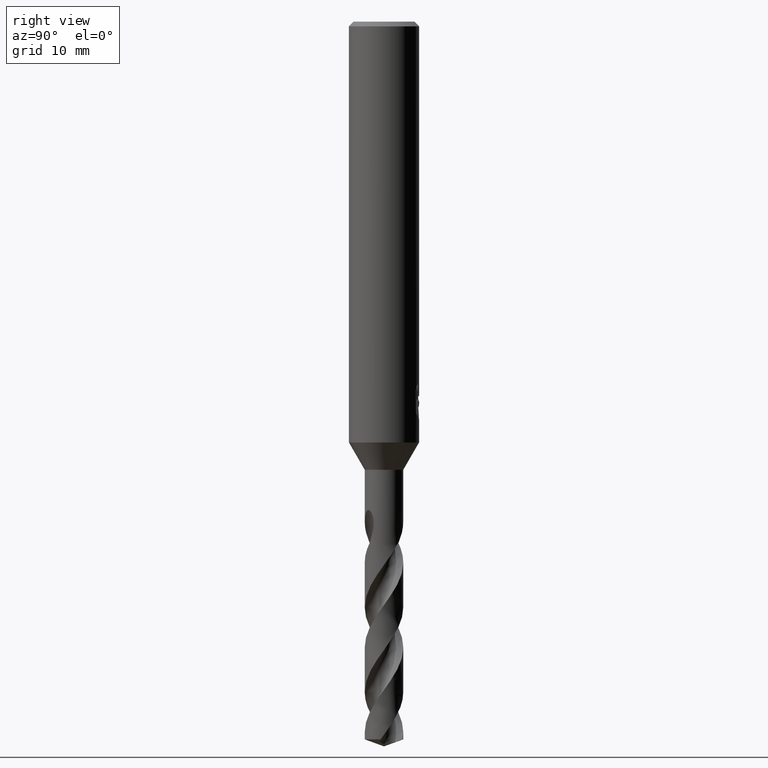
[diagram: clean part render]
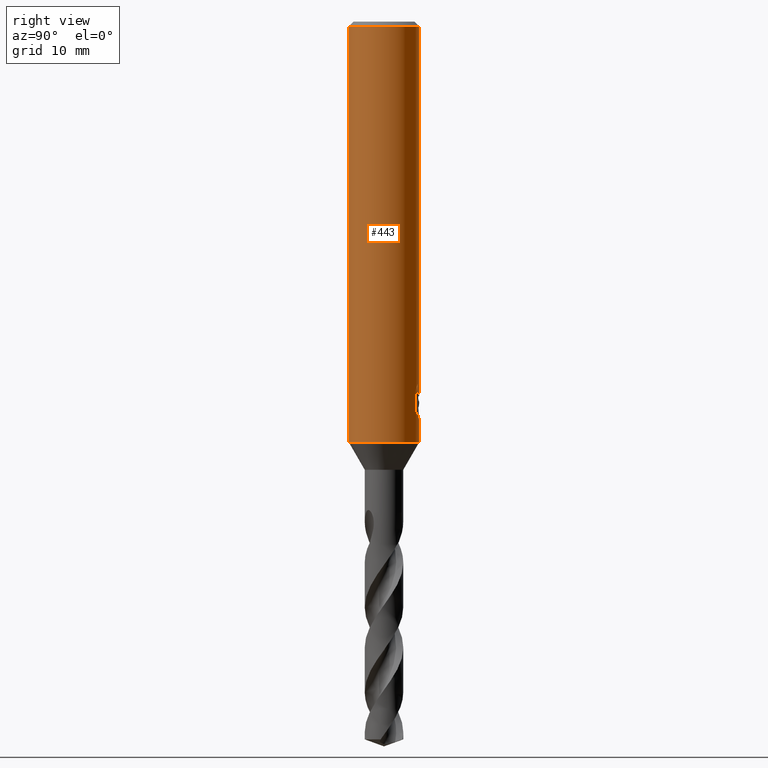
[diagram: same view with one face highlighted and labeled with its STEP entity id]
A machine part, right view. The second image highlights one B-rep face of the part: STEP entity #443.
In plain terms, the highlighted cylindrical surface (edge-blend (fillet) strip) has radius 3 mm, axis along (-0, -0, 1).
Its self-contained STEP definition (entity closure, byte-faithful):
#285=EDGE_CURVE('',#363,#711,#792,.T.);
#303=VERTEX_POINT('',#812);
#325=VERTEX_POINT('',#838);
#329=VERTEX_POINT('',#842);
#351=VERTEX_POINT('',#867);
#363=VERTEX_POINT('',#881);
#373=EDGE_CURVE('',#351,#303,#891,.T.);
#381=EDGE_CURVE('',#441,#329,#900,.T.);
#395=EDGE_CURVE('',#441,#627,#915,.T.);
#421=EDGE_CURVE('',#329,#663,#944,.T.);
#427=EDGE_CURVE('',#663,#303,#950,.T.);
#433=EDGE_CURVE('',#493,#325,#957,.T.);
#441=VERTEX_POINT('',#965);
#443=ADVANCED_FACE('',(#967),#968,.T.);
#475=EDGE_CURVE('',#325,#685,#1002,.T.);
#493=VERTEX_POINT('',#1022);
#503=EDGE_CURVE('',#351,#685,#1034,.T.);
#583=VERTEX_POINT('',#1124);
#607=EDGE_CURVE('',#583,#363,#1149,.T.);
#627=VERTEX_POINT('',#1170);
#639=EDGE_CURVE('',#711,#493,#1183,.T.);
#663=VERTEX_POINT('',#1210);
#685=VERTEX_POINT('',#1232);
#709=EDGE_CURVE('',#627,#583,#1258,.T.);
#711=VERTEX_POINT('',#1260);
#792=B_SPLINE_CURVE_WITH_KNOTS('',3,(#1344,#1345,#1346,#1347,#1348,#1349,#1350,#1351),.UNSPECIFIED.,.F.,.F.,(4,2,2,4),(8.17446522132897,8.48751487521068,8.80056452909238,9.43014514523744),.UNSPECIFIED.);
#812=CARTESIAN_POINT('',(3.67381906146713E-016,-3.0,-0.399999999999999));
#838=CARTESIAN_POINT('',(0.799431726384364,2.89152363207533,-31.000000276873));
#842=CARTESIAN_POINT('',(0.0,3.0,-36.0));
#867=CARTESIAN_POINT('',(0.0,3.0,-0.399999999999999));
#881=CARTESIAN_POINT('',(0.873560781758956,2.86999852971612,-33.7587351791531));
#891=CIRCLE('',#2178,3.0);
#900=LINE('',#2487,#2488);
#915=B_SPLINE_CURVE_WITH_KNOTS('',3,(#2612,#2613,#2614,#2615,#2616,#2617,#2618,#2619,#2620,#2621,#2622,#2623,#2624,#2625,#2626,#2627),.UNSPECIFIED.,.F.,.F.,(4,2,2,2,2,2,2,4),(5.66023402257373,6.29060333517104,6.60504483258975,6.91948633000846,7.23392782742717,7.54836932484587,7.86141901111221,8.17446869737855),.UNSPECIFIED.);
#944=CIRCLE('',#2669,3.0);
#950=LINE('',#2676,#2677);
#957=B_SPLINE_CURVE_WITH_KNOTS('',3,(#2686,#2687,#2688,#2689,#2690,#2691,#2692,#2693),.UNSPECIFIED.,.F.,.F.,(4,2,2,4),(0.629580638580865,1.25916127716173,1.57221094126725,1.88526060537277),.UNSPECIFIED.);
#965=CARTESIAN_POINT('',(-2.46407913303377E-016,3.0,-34.0310253601033));
#967=FACE_OUTER_BOUND('',#2708,.T.);
#968=CYLINDRICAL_SURFACE('',#2709,3.0);
#1002=B_SPLINE_CURVE_WITH_KNOTS('',3,(#2876,#2877,#2878,#2879,#2880,#2881,#2882,#2883,#2884,#2885,#2886,#2887,#2888,#2889,#2890,#2891,#2892,#2893,#2894,#2895,#2896,#2897,#2898,#2899,#2900,#2901,#2902),.UNSPECIFIED.,.F.,.F.,(4,2,3,2,2,2,2,2,2,2,2,2,4),(-0.54422824842136,-0.27211412421068,0.0,0.272114124210678,0.544228248421357,0.817906359646673,1.09158447087199,1.36255924571499,1.63353402055798,1.90530456554772,2.17707511053746,2.4488456555272,2.72061620051693),.UNSPECIFIED.);
#1022=CARTESIAN_POINT('',(1.33721006514658,2.68549236485057,-31.5150484364821));
#1034=LINE('',#3021,#3022);
#1124=CARTESIAN_POINT('',(0.873560781758957,2.86999852971612,-32.3198931596091));
#1149=LINE('',#4179,#4180);
#1170=CARTESIAN_POINT('',(0.29010312703583,2.98594041730307,-33.9998328990228));
#1183=LINE('',#4246,#4247);
#1210=CARTESIAN_POINT('',(3.67381906146713E-016,-3.0,-36.0));
#1232=CARTESIAN_POINT('',(-1.20768269592175E-015,3.0,-32.0232688117743));
#1258=ELLIPSE('',#4781,9.14398372010932,3.0);
#1260=CARTESIAN_POINT('',(1.33721006514658,2.68549236485056,-33.2901657003257));
#1344=CARTESIAN_POINT('',(0.600330703923335,2.93932016730517,-33.9050364278969));
#1345=CARTESIAN_POINT('',(0.700343038443484,2.91889351228921,-33.8631861412044));
#1346=CARTESIAN_POINT('',(0.795685584213131,2.8940165604303,-33.8114119954011));
#1347=CARTESIAN_POINT('',(0.971352589628262,2.83988055167306,-33.692706383359));
#1348=CARTESIAN_POINT('',(1.0516835476539,2.81066216129401,-33.6257659914415));
#1349=CARTESIAN_POINT('',(1.26543925920527,2.72440179743877,-33.4122346680481));
#1350=CARTESIAN_POINT('',(1.3899740959159,2.66030349847411,-33.2319488826214));
#1351=CARTESIAN_POINT('',(1.47371594109741,2.61307507066968,-33.0321377817991));
#2178=AXIS2_PLACEMENT_3D('',#5346,#5347,#5348);
#2487=CARTESIAN_POINT('',(-3.67381906146713E-016,3.0,-18.2));
#2488=VECTOR('',#5357,1.0);
#2612=CARTESIAN_POINT('',(-1.53050642192579,2.58022287650581,-33.0319811255889));
#2613=CARTESIAN_POINT('',(-1.44691631248335,2.62980577312329,-33.2314887010961));
#2614=CARTESIAN_POINT('',(-1.32276760444366,2.69707077181617,-33.4113258593841));
#2615=CARTESIAN_POINT('',(-1.10973155101076,2.78826898930335,-33.6245951706909));
#2616=CARTESIAN_POINT('',(-1.02948996220254,2.81934349084513,-33.6916117853674));
#2617=CARTESIAN_POINT('',(-0.853932698223484,2.87738531454781,-33.8105216600777));
#2618=CARTESIAN_POINT('',(-0.758609991487907,2.90431263574779,-33.8624240602539));
#2619=CARTESIAN_POINT('',(-0.558469552260235,2.94934446690523,-33.9464055954533));
#2620=CARTESIAN_POINT('',(-0.453457041446381,2.96746268462387,-33.9785511641911));
#2621=CARTESIAN_POINT('',(-0.240810292537893,2.99223469602914,-34.0209924679526));
#2622=CARTESIAN_POINT('',(-0.133171317626829,2.99887501234033,-34.0312723335086));
#2623=CARTESIAN_POINT('',(0.0759830626177195,3.00085245803086,-34.0312723335086));
#2624=CARTESIAN_POINT('',(0.183273473896684,2.99629272230549,-34.0210815541729));
#2625=CARTESIAN_POINT('',(0.39543915272815,2.97573303917486,-33.9788816901513));
#2626=CARTESIAN_POINT('',(0.500318639064909,2.95974677710468,-33.9468871509919));
#2627=CARTESIAN_POINT('',(0.600330982089903,2.93932011049205,-33.9050368602192));
#2669=AXIS2_PLACEMENT_3D('',#5415,#5416,#5417);
#2676=CARTESIAN_POINT('',(3.67381906146713E-016,-3.0,-18.2));
#2677=VECTOR('',#5418,1.0);
#2686=CARTESIAN_POINT('',(1.47371594887933,2.61307506628086,-31.7730763684241));
#2687=CARTESIAN_POINT('',(1.38997410067862,2.66030349611674,-31.5732652606136));
#2688=CARTESIAN_POINT('',(1.2654392594963,2.72440179761724,-31.3929794688919));
#2689=CARTESIAN_POINT('',(1.05168354029617,2.81066216411606,-31.1794481382038));
#2690=CARTESIAN_POINT('',(0.971352579549231,2.83988055521709,-31.1125077441098));
#2691=CARTESIAN_POINT('',(0.795685568183073,2.89401656493242,-30.9938021282019));
#2692=CARTESIAN_POINT('',(0.700343019183212,2.91889351702519,-30.9420279807093));
#2693=CARTESIAN_POINT('',(0.600330681290245,2.93932017192779,-30.9001776926585));
#2708=EDGE_LOOP('',(#5436,#5437,#5438,#5439,#5440,#5441,#5442,#5443,#5444,#5445,#5446,#5447));
#2709=AXIS2_PLACEMENT_3D('',#5448,#5449,#5450);
#2876=CARTESIAN_POINT('',(0.665621182276714,2.92522622060321,-30.8140957881762));
#2877=CARTESIAN_POINT('',(0.728850563417096,2.91083867849353,-30.877518087557));
#2878=CARTESIAN_POINT('',(0.783900459387161,2.89602337967411,-30.9578702196133));
#2879=CARTESIAN_POINT('',(0.857188692916628,2.87518328740958,-31.1345580124299));
#2880=CARTESIAN_POINT('',(0.875400981188567,2.86943777108584,-31.2309373045166));
#2881=CARTESIAN_POINT('',(0.875400981188567,2.86943777108584,-31.3216420125868));
#2882=CARTESIAN_POINT('',(0.875400981188567,2.86943777108584,-31.412346720657));
#2883=CARTESIAN_POINT('',(0.857188692916629,2.87518328740958,-31.5087260127437));
#2884=CARTESIAN_POINT('',(0.783900459387161,2.89602337967411,-31.6854138055602));
#2885=CARTESIAN_POINT('',(0.728850563417096,2.91083867849353,-31.7657659376165));
#2886=CARTESIAN_POINT('',(0.60202838769231,2.93969645569731,-31.8929750586276));
#2887=CARTESIAN_POINT('',(0.5214778595293,2.95568533572518,-31.9483797636259));
#2888=CARTESIAN_POINT('',(0.34429909105015,2.98152194310932,-32.0221641076746));
#2889=CARTESIAN_POINT('',(0.247628172090375,2.99115403786358,-32.0405166027747));
#2890=CARTESIAN_POINT('',(0.0663244946631877,3.00062654348629,-32.0405166027747));
#2891=CARTESIAN_POINT('',(-0.0299285908853379,3.00115720326599,-32.0224875186921));
#2892=CARTESIAN_POINT('',(-0.206881310600538,2.99416773126077,-31.949244373347));
#2893=CARTESIAN_POINT('',(-0.287593937381961,2.98687212067831,-31.8940404490632));
#2894=CARTESIAN_POINT('',(-0.415200117492864,2.97182576996222,-31.7666805419979));
#2895=CARTESIAN_POINT('',(-0.470604049431396,2.96309385107775,-31.6859121102136));
#2896=CARTESIAN_POINT('',(-0.544183869965539,2.95046729924835,-31.5086992019516));
#2897=CARTESIAN_POINT('',(-0.562348199187247,2.94682278104247,-31.41223219425));
#2898=CARTESIAN_POINT('',(-0.562348199187247,2.94682278104247,-31.2310518309235));
#2899=CARTESIAN_POINT('',(-0.54418386996554,2.95046729924835,-31.134584823222));
#2900=CARTESIAN_POINT('',(-0.4706040494314,2.96309385107775,-30.95737191496));
#2901=CARTESIAN_POINT('',(-0.415200117492863,2.97182576996222,-30.8766034831756));
#2902=CARTESIAN_POINT('',(-0.351303479704285,2.97935997575782,-30.812830162452));
#3021=CARTESIAN_POINT('',(-3.67381906146713E-016,3.0,-18.2));
#3022=VECTOR('',#5523,1.0);
#4179=CARTESIAN_POINT('',(0.873560781758957,2.86999852971612,-33.0393141693811));
#4180=VECTOR('',#5655,1.0);
#4246=CARTESIAN_POINT('',(1.33721006514658,2.68549236485056,-32.4026070684039));
#4247=VECTOR('',#5689,1.0);
#4781=AXIS2_PLACEMENT_3D('',#5761,#5762,#5763);
#5346=CARTESIAN_POINT('',(0.0,0.0,-0.399999999999999));
#5347=DIRECTION('',(0.0,0.0,-1.0));
#5348=DIRECTION('',(0.0,1.0,0.0));
#5357=DIRECTION('',(0.0,0.0,-1.0));
#5415=CARTESIAN_POINT('',(0.0,0.0,-36.0));
#5416=DIRECTION('',(0.0,0.0,-1.0));
#5417=DIRECTION('',(0.0,1.0,0.0));
#5418=DIRECTION('',(-0.0,-0.0,1.0));
#5436=ORIENTED_EDGE('',*,*,#503,.F.);
#5437=ORIENTED_EDGE('',*,*,#373,.T.);
#5438=ORIENTED_EDGE('',*,*,#427,.F.);
#5439=ORIENTED_EDGE('',*,*,#421,.F.);
#5440=ORIENTED_EDGE('',*,*,#381,.F.);
#5441=ORIENTED_EDGE('',*,*,#395,.T.);
#5442=ORIENTED_EDGE('',*,*,#709,.T.);
#5443=ORIENTED_EDGE('',*,*,#607,.T.);
#5444=ORIENTED_EDGE('',*,*,#285,.T.);
#5445=ORIENTED_EDGE('',*,*,#639,.T.);
#5446=ORIENTED_EDGE('',*,*,#433,.T.);
#5447=ORIENTED_EDGE('',*,*,#475,.T.);
#5448=CARTESIAN_POINT('',(0.0,0.0,-18.2));
#5449=DIRECTION('',(-0.0,-0.0,1.0));
#5450=DIRECTION('',(0.0,1.0,0.0));
#5523=DIRECTION('',(0.0,0.0,-1.0));
#5655=DIRECTION('',(0.0,0.0,-1.0));
#5689=DIRECTION('',(-0.0,-0.0,1.0));
#5761=CARTESIAN_POINT('',(0.0,0.0,-34.8351219173269));
#5762=DIRECTION('',(0.944648353914092,0.0,-0.328084573619969));
#5763=DIRECTION('',(0.328084573619969,-0.0,0.944648353914092));